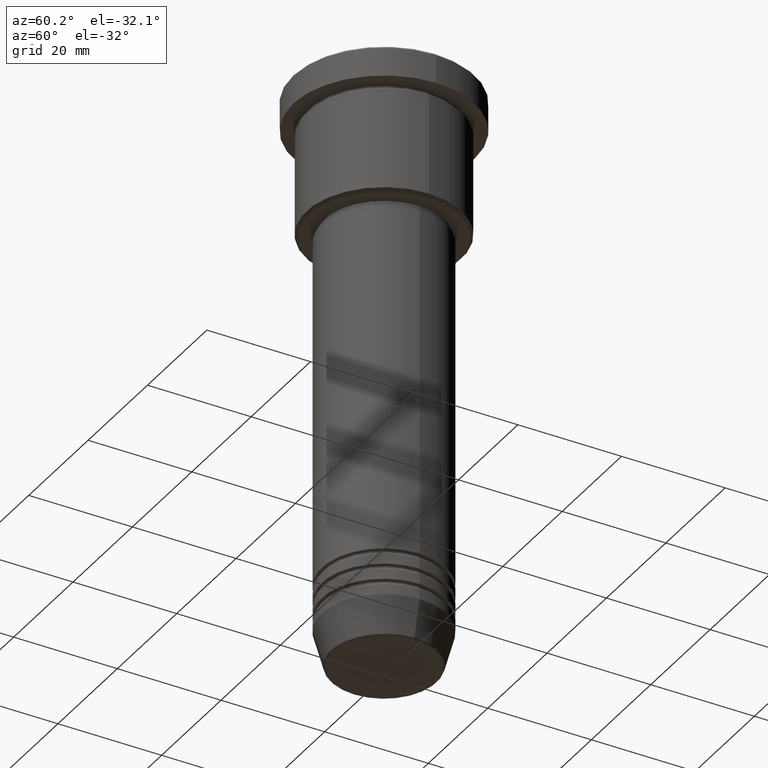
[diagram: clean part render]
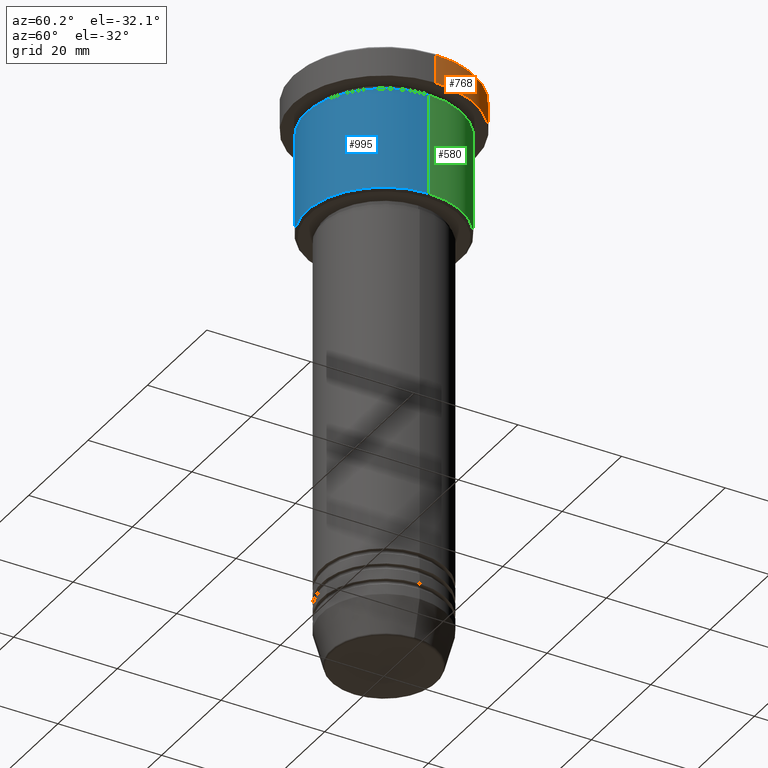
[diagram: same view with three faces highlighted in distinct colors, each labeled with its STEP entity id]
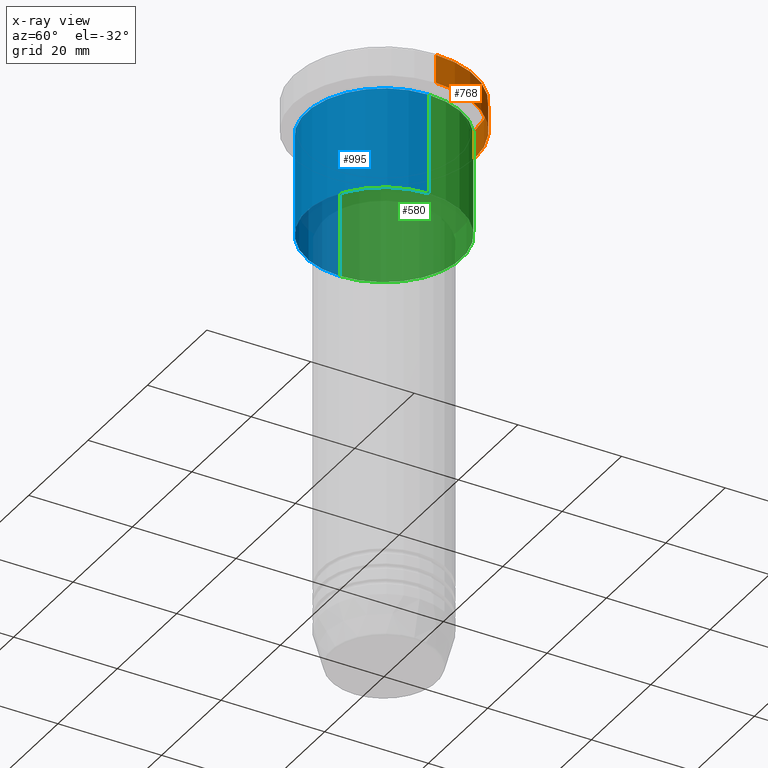
[diagram: x-ray of the same camera — body ghosted, the three highlighted faces saturated]
A machine part, auxiliary view with three faces highlighted in distinct colors.
The next image is the same camera in x-ray (body ghosted, the three faces saturated) — at least one of them is partly hidden behind the body in this view.
Their STEP definitions:

[orange] entity #768 — the highlighted cylindrical surface (partial cylindrical patch) has radius 17.5 mm, axis along (-0, -0, 1).
#27 = DIRECTION ( 'NONE',  ( -0.000000000000000000, -0.000000000000000000, 1.000000000000000000 ) ) ;
#66 = DIRECTION ( 'NONE',  ( 1.000000000000000000, 0.000000000000000000, 0.000000000000000000 ) ) ;
#87 = ORIENTED_EDGE ( 'NONE', *, *, #921, .T. ) ;
#94 = CARTESIAN_POINT ( 'NONE',  ( 0.000000000000000000, 0.000000000000000000, 0.000000000000000000 ) ) ;
#95 = CARTESIAN_POINT ( 'NONE',  ( -17.50000000000000000, 2.143131898507868248E-15, 0.000000000000000000 ) ) ;
#130 = DIRECTION ( 'NONE',  ( 0.000000000000000000, 0.000000000000000000, -1.000000000000000000 ) ) ;
#141 = VERTEX_POINT ( 'NONE', #631 ) ;
#148 = ORIENTED_EDGE ( 'NONE', *, *, #838, .T. ) ;
#154 = VECTOR ( 'NONE', #727, 1000.000000000000000 ) ;
#162 = CARTESIAN_POINT ( 'NONE',  ( 17.50000000000000000, 0.000000000000000000, -5.999999999999995559 ) ) ;
#175 = AXIS2_PLACEMENT_3D ( 'NONE', #94, #226, #877 ) ;
#226 = DIRECTION ( 'NONE',  ( -0.000000000000000000, -0.000000000000000000, 1.000000000000000000 ) ) ;
#249 = ORIENTED_EDGE ( 'NONE', *, *, #1019, .F. ) ;
#275 = FACE_OUTER_BOUND ( 'NONE', #712, .T. ) ;
#306 = EDGE_CURVE ( 'NONE', #1120, #141, #1105, .T. ) ;
#392 = CARTESIAN_POINT ( 'NONE',  ( 0.000000000000000000, 0.000000000000000000, -0.5000000000000280886 ) ) ;
#478 = CYLINDRICAL_SURFACE ( 'NONE', #175, 17.50000000000000000 ) ;
#507 = DIRECTION ( 'NONE',  ( 1.000000000000000000, 0.000000000000000000, 0.000000000000000000 ) ) ;
#519 = VERTEX_POINT ( 'NONE', #162 ) ;
#560 = CIRCLE ( 'NONE', #961, 17.50000000000000000 ) ;
#593 = CARTESIAN_POINT ( 'NONE',  ( 17.50000000000000000, 0.000000000000000000, -0.5000000000000280886 ) ) ;
#627 = DIRECTION ( 'NONE',  ( -0.000000000000000000, -0.000000000000000000, 1.000000000000000000 ) ) ;
#631 = CARTESIAN_POINT ( 'NONE',  ( -17.50000000000000000, 2.143131898507868248E-15, -0.5000000000000280886 ) ) ;
#642 = CIRCLE ( 'NONE', #999, 17.50000000000000000 ) ;
#712 = EDGE_LOOP ( 'NONE', ( #87, #814, #148, #249 ) ) ;
#727 = DIRECTION ( 'NONE',  ( -0.000000000000000000, -0.000000000000000000, 1.000000000000000000 ) ) ;
#768 = ADVANCED_FACE ( 'NONE', ( #275 ), #478, .T. ) ;
#814 = ORIENTED_EDGE ( 'NONE', *, *, #306, .T. ) ;
#821 = CARTESIAN_POINT ( 'NONE',  ( 0.000000000000000000, 0.000000000000000000, -5.999999999999995559 ) ) ;
#835 = VECTOR ( 'NONE', #27, 1000.000000000000000 ) ;
#838 = EDGE_CURVE ( 'NONE', #141, #887, #642, .T. ) ;
#877 = DIRECTION ( 'NONE',  ( 1.000000000000000000, 0.000000000000000000, 0.000000000000000000 ) ) ;
#882 = LINE ( 'NONE', #1073, #154 ) ;
#887 = VERTEX_POINT ( 'NONE', #593 ) ;
#921 = EDGE_CURVE ( 'NONE', #519, #1120, #560, .T. ) ;
#961 = AXIS2_PLACEMENT_3D ( 'NONE', #821, #627, #66 ) ;
#999 = AXIS2_PLACEMENT_3D ( 'NONE', #392, #130, #507 ) ;
#1019 = EDGE_CURVE ( 'NONE', #519, #887, #882, .T. ) ;
#1073 = CARTESIAN_POINT ( 'NONE',  ( 17.50000000000000000, 0.000000000000000000, 0.000000000000000000 ) ) ;
#1105 = LINE ( 'NONE', #95, #835 ) ;
#1110 = CARTESIAN_POINT ( 'NONE',  ( -17.50000000000000000, 2.143131898507868248E-15, -5.999999999999995559 ) ) ;
#1120 = VERTEX_POINT ( 'NONE', #1110 ) ;

[blue] entity #995 — the highlighted cylindrical surface (partial cylindrical patch) has radius 15 mm, axis along (-0, -0, 1).
#46 = EDGE_CURVE ( 'NONE', #1072, #597, #927, .T. ) ;
#88 = CIRCLE ( 'NONE', #307, 15.00000000000000000 ) ;
#102 = ORIENTED_EDGE ( 'NONE', *, *, #149, .T. ) ;
#140 = VECTOR ( 'NONE', #903, 1000.000000000000000 ) ;
#149 = EDGE_CURVE ( 'NONE', #316, #193, #88, .T. ) ;
#164 = EDGE_CURVE ( 'NONE', #193, #597, #902, .T. ) ;
#165 = LINE ( 'NONE', #538, #140 ) ;
#177 = DIRECTION ( 'NONE',  ( 1.000000000000000000, 0.000000000000000000, 0.000000000000000000 ) ) ;
#192 = EDGE_LOOP ( 'NONE', ( #647, #102, #884, #1065 ) ) ;
#193 = VERTEX_POINT ( 'NONE', #536 ) ;
#285 = AXIS2_PLACEMENT_3D ( 'NONE', #797, #971, #525 ) ;
#307 = AXIS2_PLACEMENT_3D ( 'NONE', #541, #987, #906 ) ;
#316 = VERTEX_POINT ( 'NONE', #851 ) ;
#438 = DIRECTION ( 'NONE',  ( -0.000000000000000000, -0.000000000000000000, 1.000000000000000000 ) ) ;
#525 = DIRECTION ( 'NONE',  ( 1.000000000000000000, 0.000000000000000000, 0.000000000000000000 ) ) ;
#536 = CARTESIAN_POINT ( 'NONE',  ( 15.00000000000000000, 0.000000000000000000, -26.50000000000000000 ) ) ;
#538 = CARTESIAN_POINT ( 'NONE',  ( -15.00000000000000000, 1.836970198721029589E-15, 0.000000000000000000 ) ) ;
#541 = CARTESIAN_POINT ( 'NONE',  ( 0.000000000000000000, 0.000000000000000000, -26.50000000000000000 ) ) ;
#543 = FACE_OUTER_BOUND ( 'NONE', #192, .T. ) ;
#597 = VERTEX_POINT ( 'NONE', #822 ) ;
#647 = ORIENTED_EDGE ( 'NONE', *, *, #1074, .F. ) ;
#731 = CARTESIAN_POINT ( 'NONE',  ( 0.000000000000000000, 0.000000000000000000, -6.999999999999995559 ) ) ;
#734 = CYLINDRICAL_SURFACE ( 'NONE', #285, 15.00000000000000000 ) ;
#797 = CARTESIAN_POINT ( 'NONE',  ( 0.000000000000000000, 0.000000000000000000, 0.000000000000000000 ) ) ;
#819 = CARTESIAN_POINT ( 'NONE',  ( 15.00000000000000000, 0.000000000000000000, 0.000000000000000000 ) ) ;
#822 = CARTESIAN_POINT ( 'NONE',  ( 15.00000000000000000, 0.000000000000000000, -6.999999999999995559 ) ) ;
#824 = DIRECTION ( 'NONE',  ( -0.000000000000000000, -0.000000000000000000, 1.000000000000000000 ) ) ;
#851 = CARTESIAN_POINT ( 'NONE',  ( -15.00000000000000000, 1.836970198721029589E-15, -26.50000000000000000 ) ) ;
#884 = ORIENTED_EDGE ( 'NONE', *, *, #164, .T. ) ;
#902 = LINE ( 'NONE', #819, #1159 ) ;
#903 = DIRECTION ( 'NONE',  ( -0.000000000000000000, -0.000000000000000000, 1.000000000000000000 ) ) ;
#906 = DIRECTION ( 'NONE',  ( -1.000000000000000000, 0.000000000000000000, 0.000000000000000000 ) ) ;
#927 = CIRCLE ( 'NONE', #1026, 15.00000000000000000 ) ;
#971 = DIRECTION ( 'NONE',  ( -0.000000000000000000, -0.000000000000000000, 1.000000000000000000 ) ) ;
#987 = DIRECTION ( 'NONE',  ( -0.000000000000000000, -0.000000000000000000, 1.000000000000000000 ) ) ;
#990 = CARTESIAN_POINT ( 'NONE',  ( -15.00000000000000000, 1.836970198721029589E-15, -6.999999999999995559 ) ) ;
#995 = ADVANCED_FACE ( 'NONE', ( #543 ), #734, .T. ) ;
#1026 = AXIS2_PLACEMENT_3D ( 'NONE', #731, #824, #177 ) ;
#1065 = ORIENTED_EDGE ( 'NONE', *, *, #46, .F. ) ;
#1072 = VERTEX_POINT ( 'NONE', #990 ) ;
#1074 = EDGE_CURVE ( 'NONE', #316, #1072, #165, .T. ) ;
#1159 = VECTOR ( 'NONE', #438, 1000.000000000000000 ) ;

[green] entity #580 — the highlighted cylindrical surface (partial cylindrical patch) has radius 15 mm, axis along (-0, -0, 1).
#21 = DIRECTION ( 'NONE',  ( 1.000000000000000000, 0.000000000000000000, 0.000000000000000000 ) ) ;
#68 = DIRECTION ( 'NONE',  ( -0.000000000000000000, -0.000000000000000000, 1.000000000000000000 ) ) ;
#91 = FACE_OUTER_BOUND ( 'NONE', #604, .T. ) ;
#97 = EDGE_CURVE ( 'NONE', #193, #316, #127, .T. ) ;
#127 = CIRCLE ( 'NONE', #786, 15.00000000000000000 ) ;
#140 = VECTOR ( 'NONE', #903, 1000.000000000000000 ) ;
#164 = EDGE_CURVE ( 'NONE', #193, #597, #902, .T. ) ;
#165 = LINE ( 'NONE', #538, #140 ) ;
#193 = VERTEX_POINT ( 'NONE', #536 ) ;
#316 = VERTEX_POINT ( 'NONE', #851 ) ;
#345 = DIRECTION ( 'NONE',  ( 1.000000000000000000, 0.000000000000000000, 0.000000000000000000 ) ) ;
#363 = ORIENTED_EDGE ( 'NONE', *, *, #1074, .T. ) ;
#377 = ORIENTED_EDGE ( 'NONE', *, *, #650, .F. ) ;
#438 = DIRECTION ( 'NONE',  ( -0.000000000000000000, -0.000000000000000000, 1.000000000000000000 ) ) ;
#493 = AXIS2_PLACEMENT_3D ( 'NONE', #1075, #68, #345 ) ;
#536 = CARTESIAN_POINT ( 'NONE',  ( 15.00000000000000000, 0.000000000000000000, -26.50000000000000000 ) ) ;
#538 = CARTESIAN_POINT ( 'NONE',  ( -15.00000000000000000, 1.836970198721029589E-15, 0.000000000000000000 ) ) ;
#580 = ADVANCED_FACE ( 'NONE', ( #91 ), #615, .T. ) ;
#597 = VERTEX_POINT ( 'NONE', #822 ) ;
#603 = AXIS2_PLACEMENT_3D ( 'NONE', #919, #764, #21 ) ;
#604 = EDGE_LOOP ( 'NONE', ( #792, #363, #377, #716 ) ) ;
#615 = CYLINDRICAL_SURFACE ( 'NONE', #493, 15.00000000000000000 ) ;
#622 = DIRECTION ( 'NONE',  ( -0.000000000000000000, -0.000000000000000000, 1.000000000000000000 ) ) ;
#650 = EDGE_CURVE ( 'NONE', #597, #1072, #725, .T. ) ;
#716 = ORIENTED_EDGE ( 'NONE', *, *, #164, .F. ) ;
#725 = CIRCLE ( 'NONE', #603, 15.00000000000000000 ) ;
#764 = DIRECTION ( 'NONE',  ( -0.000000000000000000, -0.000000000000000000, 1.000000000000000000 ) ) ;
#786 = AXIS2_PLACEMENT_3D ( 'NONE', #826, #622, #979 ) ;
#792 = ORIENTED_EDGE ( 'NONE', *, *, #97, .T. ) ;
#819 = CARTESIAN_POINT ( 'NONE',  ( 15.00000000000000000, 0.000000000000000000, 0.000000000000000000 ) ) ;
#822 = CARTESIAN_POINT ( 'NONE',  ( 15.00000000000000000, 0.000000000000000000, -6.999999999999995559 ) ) ;
#826 = CARTESIAN_POINT ( 'NONE',  ( 0.000000000000000000, 0.000000000000000000, -26.50000000000000000 ) ) ;
#851 = CARTESIAN_POINT ( 'NONE',  ( -15.00000000000000000, 1.836970198721029589E-15, -26.50000000000000000 ) ) ;
#902 = LINE ( 'NONE', #819, #1159 ) ;
#903 = DIRECTION ( 'NONE',  ( -0.000000000000000000, -0.000000000000000000, 1.000000000000000000 ) ) ;
#919 = CARTESIAN_POINT ( 'NONE',  ( 0.000000000000000000, 0.000000000000000000, -6.999999999999995559 ) ) ;
#979 = DIRECTION ( 'NONE',  ( -1.000000000000000000, 0.000000000000000000, 0.000000000000000000 ) ) ;
#990 = CARTESIAN_POINT ( 'NONE',  ( -15.00000000000000000, 1.836970198721029589E-15, -6.999999999999995559 ) ) ;
#1072 = VERTEX_POINT ( 'NONE', #990 ) ;
#1074 = EDGE_CURVE ( 'NONE', #316, #1072, #165, .T. ) ;
#1075 = CARTESIAN_POINT ( 'NONE',  ( 0.000000000000000000, 0.000000000000000000, 0.000000000000000000 ) ) ;
#1159 = VECTOR ( 'NONE', #438, 1000.000000000000000 ) ;